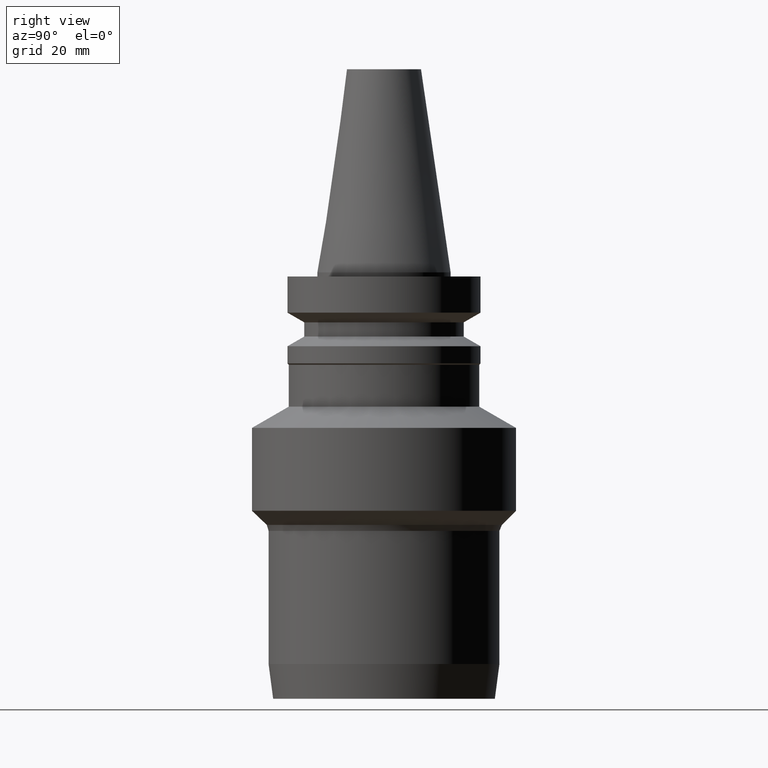
[diagram: clean part render]
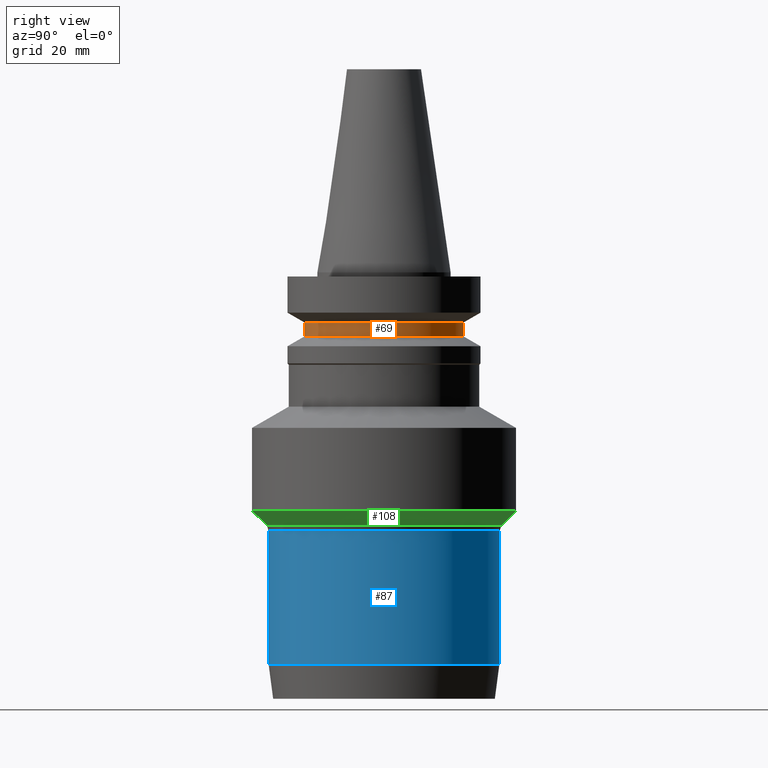
[diagram: same view with three faces highlighted in distinct colors, each labeled with its STEP entity id]
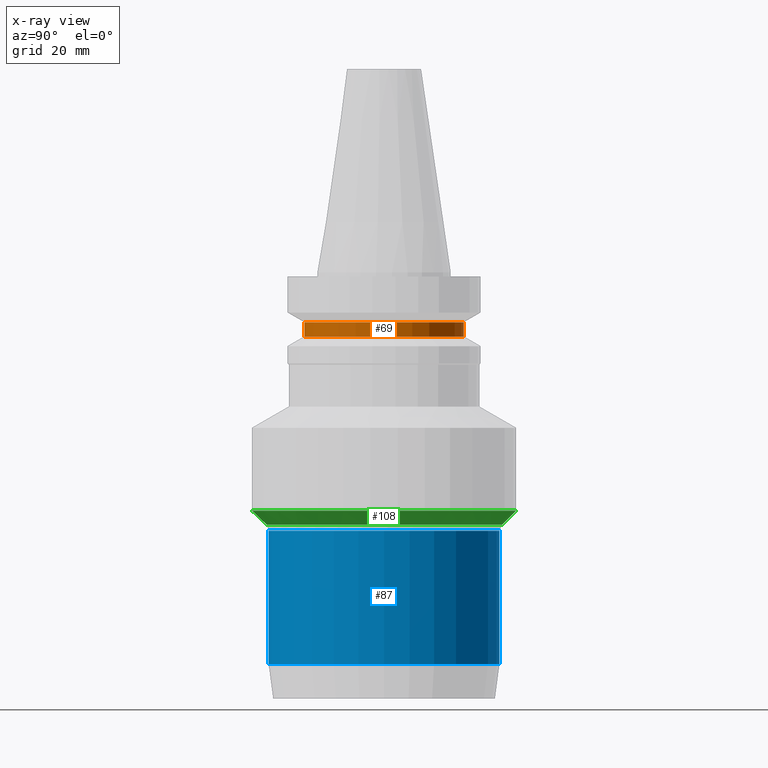
[diagram: x-ray of the same camera — body ghosted, the three highlighted faces saturated]
A machine part, right view with three faces highlighted in distinct colors.
The next image is the same camera in x-ray (body ghosted, the three faces saturated) — at least one of them is partly hidden behind the body in this view.
Their STEP definitions:

[orange] entity #69 — the highlighted cylindrical surface (bore or boss wall) has radius 19 mm, axis along (0, 0, -1).
#66=EDGE_CURVE('Unnamed[1]',#177,#177,#178,.T.);
#69=ADVANCED_FACE('Unnamed[1]',(#181,#182),#183,.T.);
#125=EDGE_CURVE('Unnamed[1]',#269,#269,#270,.T.);
#177=VERTEX_POINT('',#328);
#178=CIRCLE('',#329,19.0);
#181=FACE_BOUND('',#333,.T.);
#182=FACE_BOUND('',#334,.T.);
#183=CYLINDRICAL_SURFACE('',#335,19.0);
#269=VERTEX_POINT('',#442);
#270=CIRCLE('',#443,19.0);
#328=CARTESIAN_POINT('',(9.36279151221199E-016,19.0,-15.29059892));
#329=AXIS2_PLACEMENT_3D('',#504,#505,#506);
#333=EDGE_LOOP('',(#508));
#334=EDGE_LOOP('',(#509));
#335=AXIS2_PLACEMENT_3D('',#510,#511,#512);
#442=CARTESIAN_POINT('',(7.29240495619202E-016,19.0,-11.90940108));
#443=AXIS2_PLACEMENT_3D('',#606,#607,#608);
#504=CARTESIAN_POINT('',(9.36279151221199E-016,1.8725583024424E-015,-15.29059892));
#505=DIRECTION('',(6.12323399573677E-017,1.2246467991475E-016,-1.0));
#506=DIRECTION('',(-1.23259516440783E-032,1.0,1.2246467991475E-016));
#508=ORIENTED_EDGE('',*,*,#66,.F.);
#509=ORIENTED_EDGE('',*,*,#125,.T.);
#510=CARTESIAN_POINT('',(8.32759823420201E-016,1.6655196468404E-015,-13.6));
#511=DIRECTION('',(6.12323399573677E-017,1.2246467991475E-016,-1.0));
#512=DIRECTION('',(-1.23259516440783E-032,1.0,1.2246467991475E-016));
#606=CARTESIAN_POINT('',(7.29240495619202E-016,1.4584809912384E-015,-11.90940108));
#607=DIRECTION('',(6.12323399573677E-017,1.2246467991475E-016,-1.0));
#608=DIRECTION('',(-1.23259516440783E-032,1.0,1.2246467991475E-016));

[blue] entity #87 — the highlighted cylindrical surface (bore or boss wall) has radius 27.5 mm, axis along (0, 0, -1).
#87=ADVANCED_FACE('Unnamed[1]',(#211,#212),#213,.T.);
#129=EDGE_CURVE('Unnamed[1]',#275,#275,#276,.T.);
#134=EDGE_CURVE('Unnamed[1]',#283,#283,#284,.T.);
#211=FACE_BOUND('',#369,.T.);
#212=FACE_BOUND('',#370,.T.);
#213=CYLINDRICAL_SURFACE('',#371,27.5000000000018);
#275=VERTEX_POINT('',#450);
#276=CIRCLE('',#451,27.5000000000018);
#283=VERTEX_POINT('',#460);
#284=CIRCLE('',#461,27.5000000000019);
#369=EDGE_LOOP('',(#544));
#370=EDGE_LOOP('',(#545));
#371=AXIS2_PLACEMENT_3D('',#546,#547,#548);
#450=CARTESIAN_POINT('',(3.7711668336703E-015,27.5000000000018,-61.5878282015015));
#451=AXIS2_PLACEMENT_3D('',#612,#613,#614);
#460=CARTESIAN_POINT('',(5.71357489785489E-015,27.500000000002,-93.309759219277));
#461=AXIS2_PLACEMENT_3D('',#621,#622,#623);
#544=ORIENTED_EDGE('',*,*,#134,.F.);
#545=ORIENTED_EDGE('',*,*,#129,.T.);
#546=CARTESIAN_POINT('',(4.74237086576259E-015,9.48474173152518E-015,-77.4487937103892));
#547=DIRECTION('',(6.12323399573677E-017,1.22464679914734E-016,-1.0));
#548=DIRECTION('',(-1.23259516440775E-032,1.0,1.22464679914734E-016));
#612=CARTESIAN_POINT('',(3.7711668336703E-015,7.54233366734059E-015,-61.5878282015015));
#613=DIRECTION('',(6.12323399573677E-017,1.22464679914734E-016,-1.0));
#614=DIRECTION('',(-1.23259516440775E-032,1.0,1.22464679914734E-016));
#621=CARTESIAN_POINT('',(5.71357489785489E-015,1.14271497957098E-014,-93.309759219277));
#622=DIRECTION('',(6.12323399573677E-017,1.22464679914733E-016,-1.0));
#623=DIRECTION('',(-1.23259516440774E-032,1.0,1.22464679914733E-016));

[green] entity #108 — the highlighted conical surface has half-angle 45 deg.
#96=EDGE_CURVE('Unnamed[1]',#226,#226,#227,.T.);
#108=ADVANCED_FACE('Unnamed[1]',(#242,#243),#244,.T.);
#110=EDGE_CURVE('Unnamed[1]',#246,#246,#247,.T.);
#226=VERTEX_POINT('',#388);
#227=CIRCLE('',#389,31.45);
#242=FACE_BOUND('',#408,.T.);
#243=FACE_BOUND('',#409,.T.);
#244=CONICAL_SURFACE('',#410,29.7678932188139,0.785398163397456);
#246=VERTEX_POINT('',#413);
#247=CIRCLE('',#414,28.0857864376278);
#388=CARTESIAN_POINT('',(3.47857255950651E-015,31.45,-56.8094010767582));
#389=AXIS2_PLACEMENT_3D('',#561,#562,#563);
#408=EDGE_LOOP('',(#575));
#409=EDGE_LOOP('',(#576));
#410=AXIS2_PLACEMENT_3D('',#577,#578,#579);
#413=CARTESIAN_POINT('',(3.68457122804686E-015,28.0857864376278,-60.1736146391303));
#414=AXIS2_PLACEMENT_3D('',#580,#581,#582);
#561=CARTESIAN_POINT('',(3.47857255950651E-015,6.95714511901301E-015,-56.8094010767582));
#562=DIRECTION('',(6.12323399573677E-017,1.2246467991475E-016,-1.0));
#563=DIRECTION('',(-1.23259516440772E-032,1.0,1.2246467991475E-016));
#575=ORIENTED_EDGE('',*,*,#110,.F.);
#576=ORIENTED_EDGE('',*,*,#96,.T.);
#577=CARTESIAN_POINT('',(3.58157189377668E-015,7.16314378755337E-015,-58.4915078579442));
#578=DIRECTION('',(-6.12323399573677E-017,-1.2246467991474E-016,1.0));
#579=DIRECTION('',(-1.23259516440782E-032,1.0,1.2246467991474E-016));
#580=CARTESIAN_POINT('',(3.68457122804686E-015,7.36914245609372E-015,-60.1736146391303));
#581=DIRECTION('',(6.12323399573677E-017,1.22464679914729E-016,-1.0));
#582=DIRECTION('',(-1.23259516440794E-032,1.0,1.22464679914729E-016));